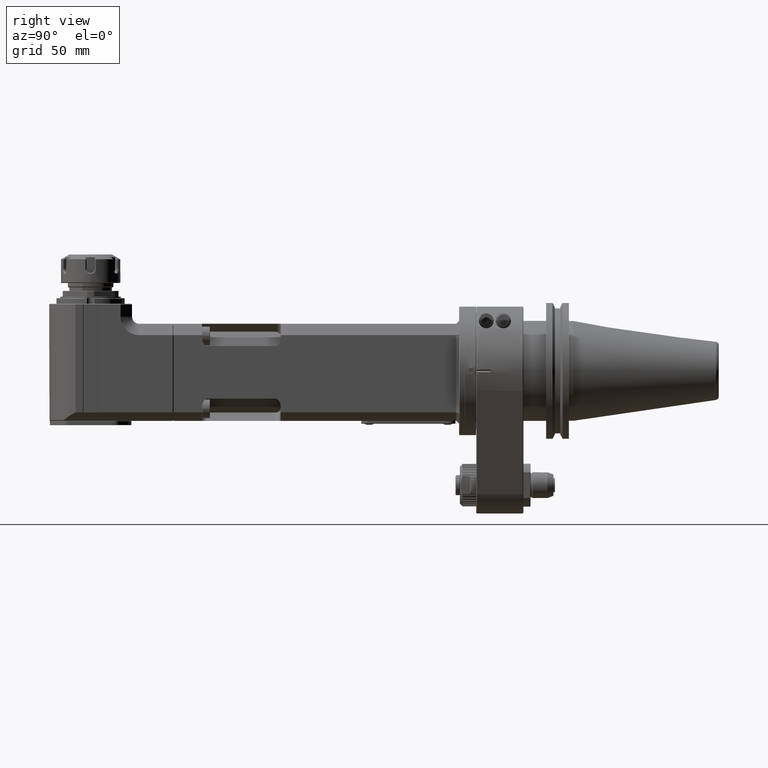
[diagram: clean part render]
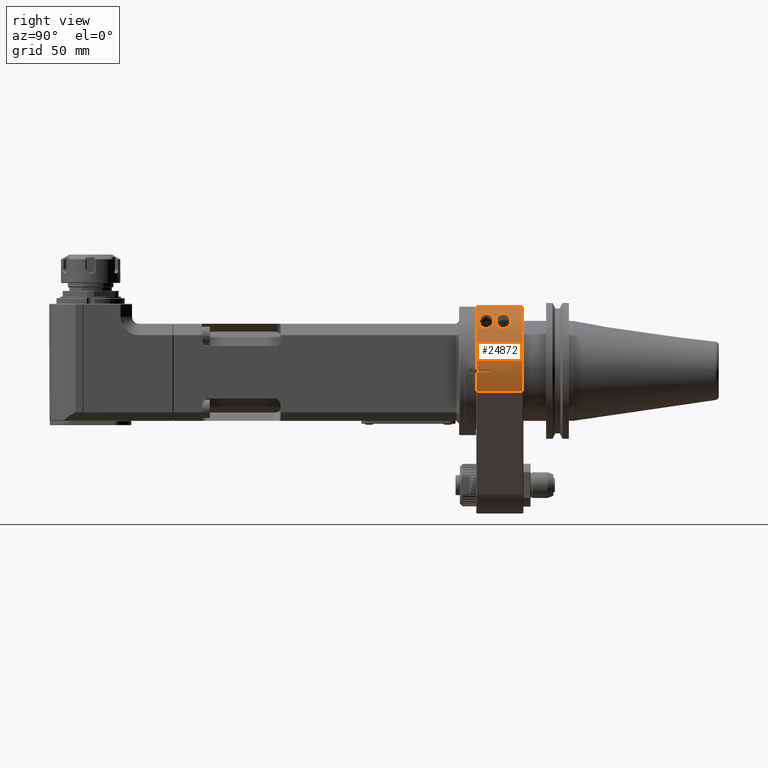
[diagram: same view with one face highlighted and labeled with its STEP entity id]
A machine part, right view. The second image highlights one B-rep face of the part: STEP entity #24872.
In plain terms, the highlighted cylindrical surface (partial cylindrical patch) has radius 45 mm, axis along (0, 1, 0).
Its self-contained STEP definition (entity closure, byte-faithful):
#356=FACE_BOUND('',#4425,.T.);
#357=FACE_BOUND('',#4426,.T.);
#1135=CIRCLE('',#26372,45.);
#1137=CIRCLE('',#26377,45.);
#1140=CIRCLE('',#26382,45.);
#1291=CIRCLE('',#26703,45.);
#2041=B_SPLINE_CURVE_WITH_KNOTS('',3,(#37934,#37935,#37936,#37937,#37938,
#37939,#37940,#37941,#37942,#37943,#37944,#37945,#37946,#37947,#37948,#37949,
#37950,#37951,#37952,#37953,#37954,#37955,#37956),.UNSPECIFIED.,.F.,.F.,
(4,2,2,2,2,3,2,2,2,2,4),(-1.14650177911681,-0.782118711859802,-0.417735644602789,
-0.208867822301395,-0.104433911150697,0.,0.104433911150697,0.208867822301395,
0.417735644602789,0.782118711859802,1.14650177911681),.UNSPECIFIED.);
#2042=B_SPLINE_CURVE_WITH_KNOTS('',3,(#37957,#37958,#37959,#37960,#37961,
#37962,#37963,#37964,#37965,#37966,#37967,#37968,#37969,#37970,#37971,#37972,
#37973,#37974,#37975,#37976),.UNSPECIFIED.,.F.,.F.,(4,2,2,2,2,2,2,2,2,4),
(1.14650177911681,1.42316705646968,1.69983233382254,1.91463594485582,2.02203775037247,
2.12943955588911,2.3217079428636,2.51397632983809,2.81307214595482,3.11216796207156),
 .UNSPECIFIED.);
#2043=B_SPLINE_CURVE_WITH_KNOTS('',3,(#37979,#37980,#37981,#37982,#37983,
#37984,#37985,#37986,#37987,#37988,#37989,#37990,#37991,#37992,#37993,#37994,
#37995,#37996,#37997,#37998),.UNSPECIFIED.,.F.,.F.,(4,2,2,2,2,2,2,2,2,4),
(1.12703774249658,1.40370301984945,1.68036829720231,1.89517190823559,2.00257371375224,
2.10997551926888,2.30224390624337,2.49451229321786,2.79360810933459,3.09270392545133),
 .UNSPECIFIED.);
#2044=B_SPLINE_CURVE_WITH_KNOTS('',3,(#37999,#38000,#38001,#38002,#38003,
#38004,#38005,#38006,#38007,#38008,#38009,#38010,#38011,#38012,#38013,#38014,
#38015,#38016,#38017,#38018,#38019,#38020,#38021),.UNSPECIFIED.,.F.,.F.,
(4,2,2,2,2,3,2,2,2,2,4),(3.09270392545133,3.45708699270834,3.82147005996535,
4.03033788226675,4.13477179341745,4.23920570456814,4.33003417437082,4.4208626441735,
4.72757109503348,5.0469072710491,5.36624344706473),.UNSPECIFIED.);
#2478=CYLINDRICAL_SURFACE('',#26702,45.);
#2898=FACE_OUTER_BOUND('',#4424,.T.);
#4424=EDGE_LOOP('',(#17513,#17514,#17515,#17516,#17517,#17518,#17519,#17520));
#4425=EDGE_LOOP('',(#17521,#17522));
#4426=EDGE_LOOP('',(#17523,#17524));
#6007=LINE('',#36270,#8098);
#6011=LINE('',#36278,#8102);
#6019=LINE('',#36309,#8110);
#6245=LINE('',#37928,#8336);
#8098=VECTOR('',#29105,9.499738308914);
#8102=VECTOR('',#29111,9.499737834386);
#8110=VECTOR('',#29127,10.);
#8336=VECTOR('',#29997,31.99972219508);
#10274=VERTEX_POINT('',#36261);
#10275=VERTEX_POINT('',#36265);
#10276=VERTEX_POINT('',#36269);
#10278=VERTEX_POINT('',#36275);
#10279=VERTEX_POINT('',#36277);
#10280=VERTEX_POINT('',#36281);
#10282=VERTEX_POINT('',#36288);
#10292=VERTEX_POINT('',#36315);
#10555=VERTEX_POINT('',#37932);
#10556=VERTEX_POINT('',#37933);
#10557=VERTEX_POINT('',#37977);
#10558=VERTEX_POINT('',#37978);
#12775=EDGE_CURVE('',#10275,#10274,#1135,.T.);
#12776=EDGE_CURVE('',#10275,#10276,#6007,.T.);
#12780=EDGE_CURVE('',#10278,#10279,#6011,.T.);
#12782=EDGE_CURVE('',#10280,#10279,#1137,.T.);
#12793=EDGE_CURVE('',#10280,#10282,#6019,.T.);
#12796=EDGE_CURVE('',#10292,#10282,#1140,.T.);
#13224=EDGE_CURVE('',#10292,#10274,#6245,.T.);
#13225=EDGE_CURVE('',#10276,#10278,#1291,.T.);
#13226=EDGE_CURVE('',#10555,#10556,#2041,.T.);
#13227=EDGE_CURVE('',#10556,#10555,#2042,.T.);
#13228=EDGE_CURVE('',#10557,#10558,#2043,.T.);
#13229=EDGE_CURVE('',#10558,#10557,#2044,.T.);
#17513=ORIENTED_EDGE('',*,*,#13225,.F.);
#17514=ORIENTED_EDGE('',*,*,#12776,.F.);
#17515=ORIENTED_EDGE('',*,*,#12775,.T.);
#17516=ORIENTED_EDGE('',*,*,#13224,.F.);
#17517=ORIENTED_EDGE('',*,*,#12796,.T.);
#17518=ORIENTED_EDGE('',*,*,#12793,.F.);
#17519=ORIENTED_EDGE('',*,*,#12782,.T.);
#17520=ORIENTED_EDGE('',*,*,#12780,.F.);
#17521=ORIENTED_EDGE('',*,*,#13226,.T.);
#17522=ORIENTED_EDGE('',*,*,#13227,.T.);
#17523=ORIENTED_EDGE('',*,*,#13228,.F.);
#17524=ORIENTED_EDGE('',*,*,#13229,.F.);
#24872=ADVANCED_FACE('',(#2898,#356,#357),#2478,.T.);
#26372=AXIS2_PLACEMENT_3D('',#36267,#29101,#29102);
#26377=AXIS2_PLACEMENT_3D('',#36282,#29116,#29117);
#26382=AXIS2_PLACEMENT_3D('',#36316,#29134,#29135);
#26702=AXIS2_PLACEMENT_3D('',#37930,#30000,#30001);
#26703=AXIS2_PLACEMENT_3D('',#37931,#30002,#30003);
#29101=DIRECTION('center_axis',(0.,1.,0.));
#29102=DIRECTION('ref_axis',(0.999758397003229,0.,-0.0219806192254606));
#29105=DIRECTION('',(1.024182073693E-10,1.,4.661858822775E-9));
#29111=DIRECTION('',(4.240621114015E-10,-1.,-1.928818786212E-8));
#29116=DIRECTION('center_axis',(0.,1.,0.));
#29117=DIRECTION('ref_axis',(0.0166666666666402,0.,0.99986110146471));
#29127=DIRECTION('',(0.,1.,0.));
#29134=DIRECTION('center_axis',(0.,-1.,0.));
#29135=DIRECTION('ref_axis',(1.,0.,0.));
#29997=DIRECTION('',(4.996046983514E-14,-1.,-1.6264908513E-14));
#30000=DIRECTION('center_axis',(0.,1.,0.));
#30001=DIRECTION('ref_axis',(1.,0.,0.));
#30002=DIRECTION('center_axis',(0.,-1.,0.));
#30003=DIRECTION('ref_axis',(0.999758397003229,0.,-0.0219806192254506));
#36261=CARTESIAN_POINT('',(42.7462992793599,0.500131179262622,-14.0625000850757));
#36265=CARTESIAN_POINT('',(44.9891278584205,0.500261774562478,-0.98912792267182));
#36267=CARTESIAN_POINT('Origin',(8.446576771348E-13,0.5002617834513,6.052935930256E-13));
#36269=CARTESIAN_POINT('',(44.98912786515,10.,-0.989127865146));
#36270=CARTESIAN_POINT('',(44.98912786417,0.5002616910859,-0.9891279094325));
#36275=CARTESIAN_POINT('',(44.98912786515,10.,0.9891278651445));
#36277=CARTESIAN_POINT('',(44.9891278900196,0.500261813725121,0.989127620016448));
#36278=CARTESIAN_POINT('',(44.98912786515,10.,0.9891278651445));
#36281=CARTESIAN_POINT('',(0.750000000006791,0.500261782757273,44.9937495656246));
#36282=CARTESIAN_POINT('Origin',(8.446576771348E-13,0.5002617834532,6.052935930256E-13));
#36288=CARTESIAN_POINT('',(0.75000000000679,32.4997382172455,44.993749565624));
#36309=CARTESIAN_POINT('',(0.75,0.,44.9937495659119));
#36315=CARTESIAN_POINT('',(42.7462992793588,32.4998688207349,-14.0625000850786));
#36316=CARTESIAN_POINT('Origin',(-4.174438572591E-13,32.49973821655,-9.015010959956E-14));
#37928=CARTESIAN_POINT('',(42.74629916601,32.49986109754,-14.06250004779));
#37930=CARTESIAN_POINT('Origin',(0.,0.,0.));
#37931=CARTESIAN_POINT('Origin',(0.,10.,0.));
#37932=CARTESIAN_POINT('',(28.28427124746,1.75,35.));
#37933=CARTESIAN_POINT('',(28.2842712474619,12.25,35.));
#37934=CARTESIAN_POINT('Ctrl Pts',(28.2842712474619,1.75,35.));
#37935=CARTESIAN_POINT('Ctrl Pts',(27.3395744064252,1.75,35.7634303342429));
#37936=CARTESIAN_POINT('Ctrl Pts',(26.2844532844903,1.92201917330533,36.5476501176263));
#37937=CARTESIAN_POINT('Ctrl Pts',(24.1877886998845,2.59849344728223,37.9678032398534));
#37938=CARTESIAN_POINT('Ctrl Pts',(23.1451580209524,3.09643341814543,38.6052267894512));
#37939=CARTESIAN_POINT('Ctrl Pts',(21.736027942972,4.10795048147965,39.4067759231211));
#37940=CARTESIAN_POINT('Ctrl Pts',(21.205197932326,4.57457338079454,39.6931515616155));
#37941=CARTESIAN_POINT('Ctrl Pts',(20.6004725359246,5.39847605858281,40.0084016967221));
#37942=CARTESIAN_POINT('Ctrl Pts',(20.4308787949815,5.6935599483935,40.0948518926029));
#37943=CARTESIAN_POINT('Ctrl Pts',(20.1921836667419,6.32028195020684,40.2155882536973));
#37944=CARTESIAN_POINT('Ctrl Pts',(20.1230589126007,6.65188696283101,40.25));
#37945=CARTESIAN_POINT('Ctrl Pts',(20.1230589126007,7.,40.25));
#37946=CARTESIAN_POINT('Ctrl Pts',(20.1230589126007,7.34811303716899,40.25));
#37947=CARTESIAN_POINT('Ctrl Pts',(20.1921836667419,7.67971804979316,40.2155882536973));
#37948=CARTESIAN_POINT('Ctrl Pts',(20.4308787949815,8.3064400516065,40.0948518926029));
#37949=CARTESIAN_POINT('Ctrl Pts',(20.6004725359246,8.60152394141719,40.0084016967221));
#37950=CARTESIAN_POINT('Ctrl Pts',(21.205197932326,9.42542661920546,39.6931515616155));
#37951=CARTESIAN_POINT('Ctrl Pts',(21.736027942972,9.89204951852035,39.4067759231211));
#37952=CARTESIAN_POINT('Ctrl Pts',(23.1451580209524,10.9035665818546,38.6052267894512));
#37953=CARTESIAN_POINT('Ctrl Pts',(24.1877886998846,11.4015065527178,37.9678032398534));
#37954=CARTESIAN_POINT('Ctrl Pts',(26.2844532844903,12.0779808266947,36.5476501176263));
#37955=CARTESIAN_POINT('Ctrl Pts',(27.3395744064252,12.25,35.7634303342429));
#37956=CARTESIAN_POINT('Ctrl Pts',(28.2842712474619,12.25,35.));
#37957=CARTESIAN_POINT('Ctrl Pts',(28.2842712474619,12.25,35.));
#37958=CARTESIAN_POINT('Ctrl Pts',(29.0015515961545,12.25,34.4203499444887));
#37959=CARTESIAN_POINT('Ctrl Pts',(29.7639205151206,12.1496349974932,33.7642896784261));
#37960=CARTESIAN_POINT('Ctrl Pts',(31.1742531823703,11.6505831755753,32.4666621976752));
#37961=CARTESIAN_POINT('Ctrl Pts',(31.8224991380334,11.2505436414047,31.825922438946));
#37962=CARTESIAN_POINT('Ctrl Pts',(32.7474159380966,10.2944251270807,30.8698039246219));
#37963=CARTESIAN_POINT('Ctrl Pts',(33.1199555105931,9.73942525702287,30.4665647266752));
#37964=CARTESIAN_POINT('Ctrl Pts',(33.5004710769903,8.7727316964671,30.0458680561456));
#37965=CARTESIAN_POINT('Ctrl Pts',(33.5990174805533,8.42856425585664,29.9351933925568));
#37966=CARTESIAN_POINT('Ctrl Pts',(33.7302599443358,7.72120618850676,29.7872345674845));
#37967=CARTESIAN_POINT('Ctrl Pts',(33.7629604744608,7.35800601838881,29.75));
#37968=CARTESIAN_POINT('Ctrl Pts',(33.7629604744608,6.3591053767517,29.75));
#37969=CARTESIAN_POINT('Ctrl Pts',(33.6535722435166,5.69196516153304,29.8753243939876));
#37970=CARTESIAN_POINT('Ctrl Pts',(33.2348069350089,4.4975517288865,30.3404935517149));
#37971=CARTESIAN_POINT('Ctrl Pts',(32.92521356894,3.96965246139063,30.6785341111395));
#37972=CARTESIAN_POINT('Ctrl Pts',(32.0579130177422,2.9202859878695,31.5891783172573));
#37973=CARTESIAN_POINT('Ctrl Pts',(31.3794339061692,2.45225126821455,32.2703807384322));
#37974=CARTESIAN_POINT('Ctrl Pts',(29.8806786317571,1.86725997996511,33.6629083638159));
#37975=CARTESIAN_POINT('Ctrl Pts',(29.0597048448016,1.75,34.3733550228128));
#37976=CARTESIAN_POINT('Ctrl Pts',(28.2842712474619,1.75,35.));
#37977=CARTESIAN_POINT('',(28.28427124746,13.75,35.));
#37978=CARTESIAN_POINT('',(28.2842712474619,24.25,35.));
#37979=CARTESIAN_POINT('Ctrl Pts',(28.2842712474619,13.75,35.));
#37980=CARTESIAN_POINT('Ctrl Pts',(29.0015515961545,13.75,34.4203499444887));
#37981=CARTESIAN_POINT('Ctrl Pts',(29.7639205151206,13.8503650025068,33.7642896784261));
#37982=CARTESIAN_POINT('Ctrl Pts',(31.1742531823703,14.3494168244247,32.4666621976752));
#37983=CARTESIAN_POINT('Ctrl Pts',(31.8224991380334,14.7494563585953,31.825922438946));
#37984=CARTESIAN_POINT('Ctrl Pts',(32.7474159380966,15.7055748729193,30.8698039246219));
#37985=CARTESIAN_POINT('Ctrl Pts',(33.1199555105931,16.2605747429771,30.4665647266752));
#37986=CARTESIAN_POINT('Ctrl Pts',(33.5004710769903,17.2272683035329,30.0458680561456));
#37987=CARTESIAN_POINT('Ctrl Pts',(33.5990174805533,17.5714357441434,29.9351933925568));
#37988=CARTESIAN_POINT('Ctrl Pts',(33.7302599443358,18.2787938114932,29.7872345674845));
#37989=CARTESIAN_POINT('Ctrl Pts',(33.7629604744608,18.6419939816112,29.75));
#37990=CARTESIAN_POINT('Ctrl Pts',(33.7629604744608,19.6408946232483,29.75));
#37991=CARTESIAN_POINT('Ctrl Pts',(33.6535722435166,20.308034838467,29.8753243939876));
#37992=CARTESIAN_POINT('Ctrl Pts',(33.2348069350089,21.5024482711135,30.3404935517149));
#37993=CARTESIAN_POINT('Ctrl Pts',(32.92521356894,22.0303475386094,30.6785341111395));
#37994=CARTESIAN_POINT('Ctrl Pts',(32.0579130177422,23.0797140121305,31.5891783172573));
#37995=CARTESIAN_POINT('Ctrl Pts',(31.3794339061692,23.5477487317855,32.2703807384322));
#37996=CARTESIAN_POINT('Ctrl Pts',(29.8806786317571,24.1327400200349,33.6629083638159));
#37997=CARTESIAN_POINT('Ctrl Pts',(29.0597048448016,24.25,34.3733550228128));
#37998=CARTESIAN_POINT('Ctrl Pts',(28.2842712474619,24.25,35.));
#37999=CARTESIAN_POINT('Ctrl Pts',(28.2842712474619,24.25,35.));
#38000=CARTESIAN_POINT('Ctrl Pts',(27.3395744064252,24.25,35.7634303342429));
#38001=CARTESIAN_POINT('Ctrl Pts',(26.2844532844903,24.0779808266947,36.5476501176263));
#38002=CARTESIAN_POINT('Ctrl Pts',(24.1877886998846,23.4015065527178,37.9678032398534));
#38003=CARTESIAN_POINT('Ctrl Pts',(23.1451580209524,22.9035665818546,38.6052267894512));
#38004=CARTESIAN_POINT('Ctrl Pts',(21.736027942972,21.8920495185204,39.4067759231211));
#38005=CARTESIAN_POINT('Ctrl Pts',(21.205197932326,21.4254266192055,39.6931515616155));
#38006=CARTESIAN_POINT('Ctrl Pts',(20.6004725359246,20.6015239414172,40.0084016967221));
#38007=CARTESIAN_POINT('Ctrl Pts',(20.4308787949815,20.3064400516065,40.0948518926029));
#38008=CARTESIAN_POINT('Ctrl Pts',(20.1921836667419,19.6797180497932,40.2155882536973));
#38009=CARTESIAN_POINT('Ctrl Pts',(20.1230589126007,19.348113037169,40.25));
#38010=CARTESIAN_POINT('Ctrl Pts',(20.1230589126007,19.,40.25));
#38011=CARTESIAN_POINT('Ctrl Pts',(20.1230589126007,18.6972384339911,40.25));
#38012=CARTESIAN_POINT('Ctrl Pts',(20.1798103695348,18.375721667411,40.2217557496493));
#38013=CARTESIAN_POINT('Ctrl Pts',(20.3939049512118,17.7722859383486,40.1136263996317));
#38014=CARTESIAN_POINT('Ctrl Pts',(20.5493321444653,17.4895582343389,40.0344723485156));
#38015=CARTESIAN_POINT('Ctrl Pts',(21.2660892189227,16.43879409014,39.6628473262856));
#38016=CARTESIAN_POINT('Ctrl Pts',(22.158919449635,15.7520539680295,39.1766751704882));
#38017=CARTESIAN_POINT('Ctrl Pts',(23.7582841808269,14.8042061252955,38.2288273277543));
#38018=CARTESIAN_POINT('Ctrl Pts',(24.6829448941409,14.4114641674332,37.6432754436484));
#38019=CARTESIAN_POINT('Ctrl Pts',(26.5318999397921,13.8831891092618,36.3637490110355));
#38020=CARTESIAN_POINT('Ctrl Pts',(27.456362642977,13.75,35.6690511867817));
#38021=CARTESIAN_POINT('Ctrl Pts',(28.2842712474619,13.75,35.));